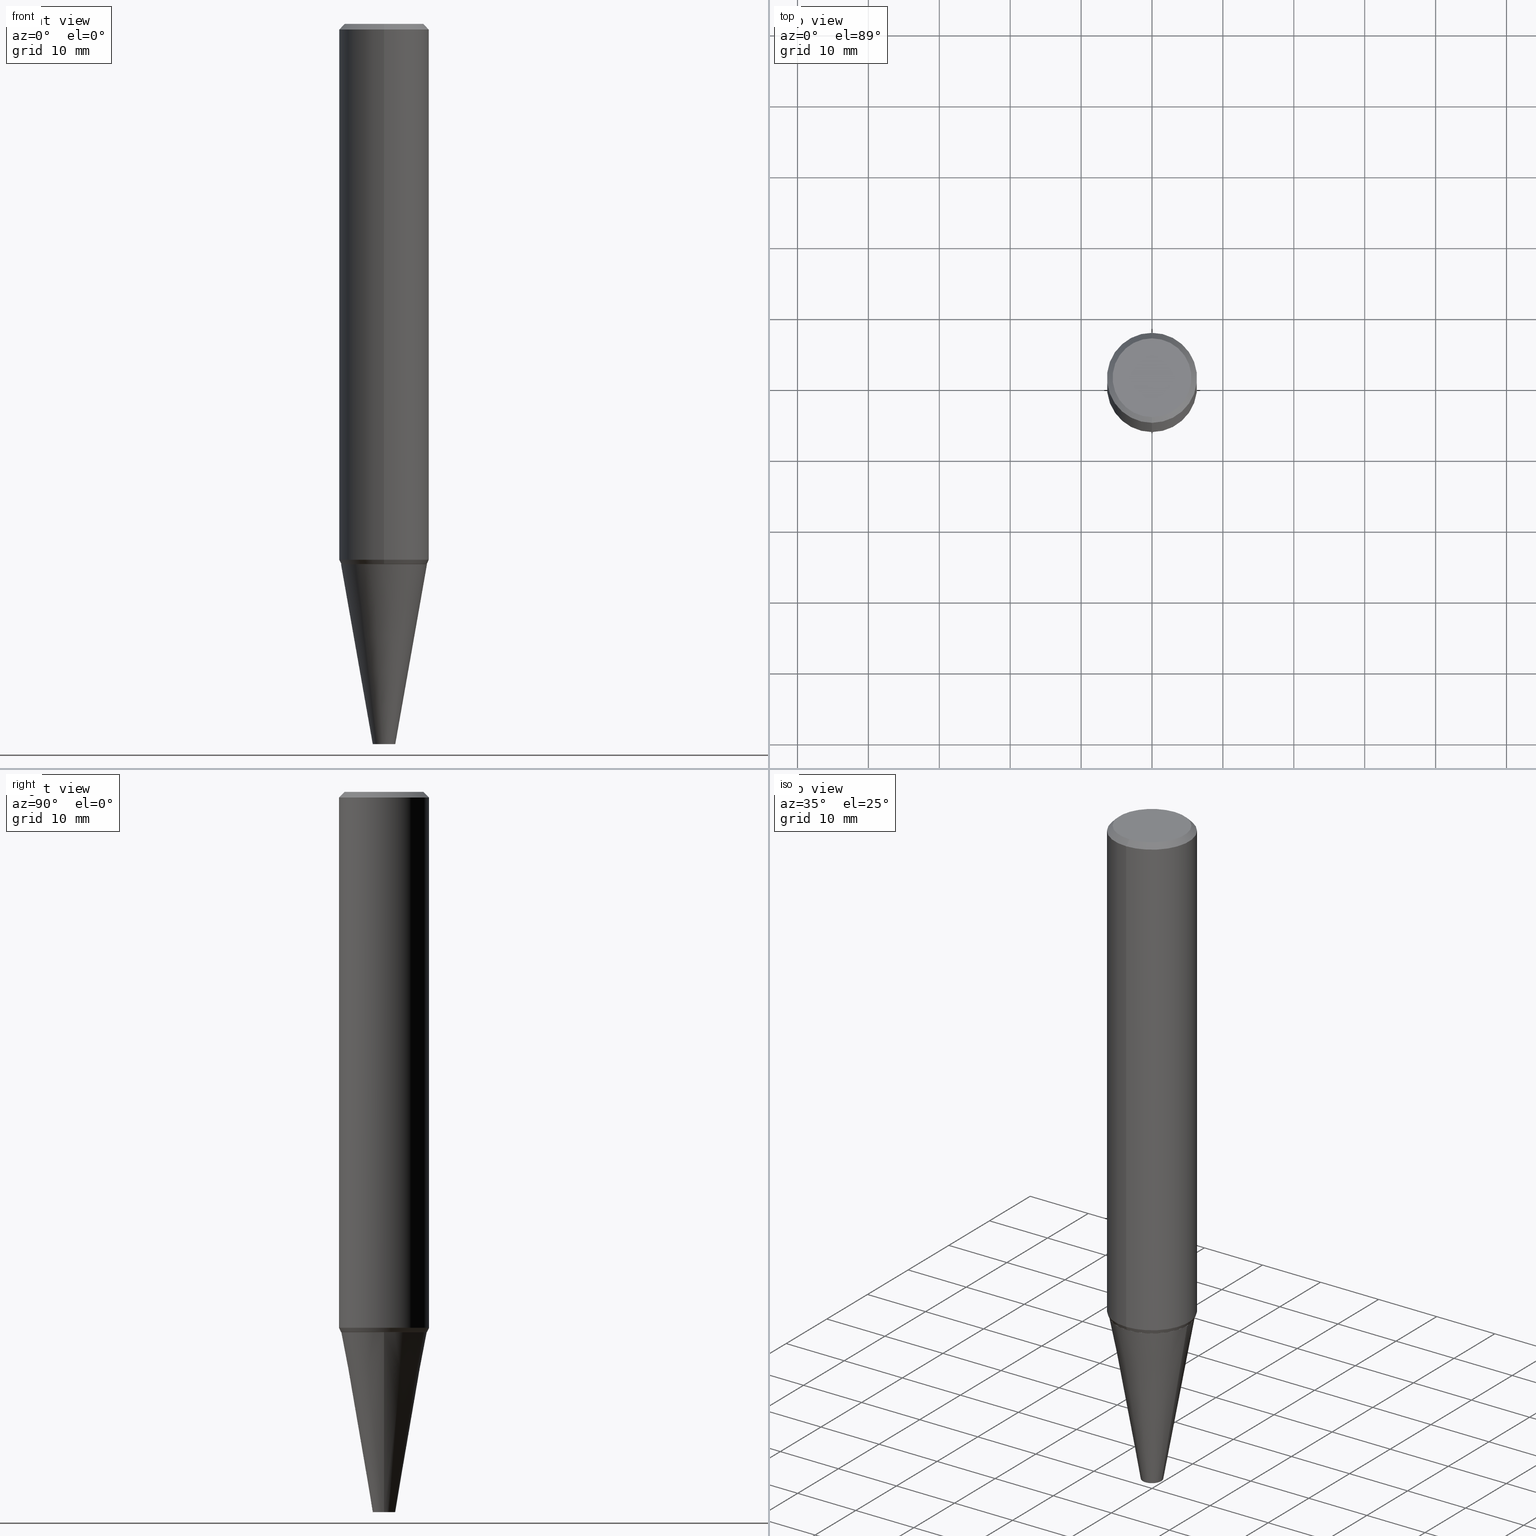
[diagram: canonical four-view strip — front | top / right | iso, engineering-drawing reading convention]
A machine part, canonical four-view strip (front | top / right | iso — engineering-drawing reading convention). The complete STEP part file that produces these views, byte-faithful:
ISO-10303-21;
HEADER;
FILE_DESCRIPTION (( 'STEP AP203' ),
    '1' );
FILE_NAME ('32389.STEP',
    '2024-03-04T15:10:15',
    ( '' ),
    ( '' ),
    'SwSTEP 2.0',
    'SolidWorks 2023',
    '' );
FILE_SCHEMA (( 'CONFIG_CONTROL_DESIGN' ));
ENDSEC;

DATA;
#1 = FACE_OUTER_BOUND ( 'NONE', #268, .T. ) ;
#2 = DIRECTION ( 'NONE',  ( -6.982962677686265922E-15, -1.000000000000000000, 2.283544290490416329E-15 ) ) ;
#3 = APPROVAL_DATE_TIME ( #105, #176 ) ;
#4 = ORIENTED_EDGE ( 'NONE', *, *, #210, .F. ) ;
#5 = COORDINATED_UNIVERSAL_TIME_OFFSET ( 5, 0, .BEHIND. ) ;
#6 = ORIENTED_EDGE ( 'NONE', *, *, #405, .T. ) ;
#7 = ADVANCED_FACE ( 'NONE', ( #79 ), #21, .F. ) ;
#8 = VECTOR ( 'NONE', #373, 39.37007874015748143 ) ;
#9 = AXIS2_PLACEMENT_3D ( 'NONE', #349, #155, #195 ) ;
#10 = DATE_TIME_ROLE ( 'creation_date' ) ;
#11 = EDGE_LOOP ( 'NONE', ( #235, #140, #271, #340 ) ) ;
#12 = ADVANCED_FACE ( 'NONE', ( #52 ), #301, .T. ) ;
#13 = DATE_AND_TIME ( #44, #415 ) ;
#14 = LINE ( 'NONE', #174, #28 ) ;
#15 = ADVANCED_FACE ( 'NONE', ( #269 ), #43, .T. ) ;
#16 = PERSON_AND_ORGANIZATION_ROLE ( 'classification_officer' ) ;
#17 = DIRECTION ( 'NONE',  ( -2.575671795613833682E-29, 3.305023247287315229E-15, 1.000000000000000000 ) ) ;
#18 = DESIGN_CONTEXT ( 'detailed design', #175, 'design' ) ;
#19 = AXIS2_PLACEMENT_3D ( 'NONE', #247, #160, #2 ) ;
#20 = CONICAL_SURFACE ( 'NONE', #239, 0.2383269807084578140, 0.7853981633977763499 ) ;
#21 = PLANE ( 'NONE',  #120 ) ;
#22 = DIRECTION ( 'NONE',  ( -2.575671795613833682E-29, 3.305023247287315229E-15, 1.000000000000000000 ) ) ;
#23 = EDGE_LOOP ( 'NONE', ( #414, #6 ) ) ;
#24 = DIRECTION ( 'NONE',  ( -2.575671795613833682E-29, 3.305023247287315229E-15, 1.000000000000000000 ) ) ;
#25 = AXIS2_PLACEMENT_3D ( 'NONE', #416, #208, #215 ) ;
#26 = LOCAL_TIME ( 10, 10, 15.00000000000000000, #261 ) ;
#27 = ADVANCED_FACE ( 'NONE', ( #305 ), #206, .T. ) ;
#28 = VECTOR ( 'NONE', #142, 39.37007874015748143 ) ;
#29 = DIRECTION ( 'NONE',  ( -6.982962677686265133E-15, -1.000000000000000000, 3.305023247287315229E-15 ) ) ;
#30 = CARTESIAN_POINT ( 'NONE',  ( 1.700071905924939890E-15, 0.2392638500633107457, -2.999063130645137409 ) ) ;
#31 = DIRECTION ( 'NONE',  ( -6.982962677686265133E-15, -1.000000000000000000, 3.312365692317912570E-15 ) ) ;
#32 = LINE ( 'NONE', #245, #238 ) ;
#33 = DIRECTION ( 'NONE',  ( -1.000000000000000000, 6.982962677686265922E-15, -4.876176775795935793E-29 ) ) ;
#34 = ORIENTED_EDGE ( 'NONE', *, *, #230, .F. ) ;
#35 = FACE_OUTER_BOUND ( 'NONE', #262, .T. ) ;
#36 = DIRECTION ( 'NONE',  ( -6.982962677686265922E-15, -1.000000000000000000, 2.292520960525318107E-15 ) ) ;
#37 = VECTOR ( 'NONE', #147, 39.37007874015748143 ) ;
#38 = FACE_OUTER_BOUND ( 'NONE', #284, .T. ) ;
#39 = LENGTH_MEASURE_WITH_UNIT ( LENGTH_MEASURE( 0.02539999999999999897 ), #153 );
#40 = ADVANCED_FACE ( 'NONE', ( #47 ), #171, .F. ) ;
#41 = ORIENTED_EDGE ( 'NONE', *, *, #258, .T. ) ;
#42 = ORIENTED_EDGE ( 'NONE', *, *, #400, .T. ) ;
#43 = CONICAL_SURFACE ( 'NONE', #152, 0.2392638500633214038, 0.4363323129985502424 ) ;
#44 = CALENDAR_DATE ( 2024, 4, 3 ) ;
#45 = DIRECTION ( 'NONE',  ( -6.982962677686265922E-15, -1.000000000000000000, 2.292520960525318107E-15 ) ) ;
#46 = PERSON_AND_ORGANIZATION_ROLE ( 'design_supplier' ) ;
#47 = FACE_OUTER_BOUND ( 'NONE', #260, .T. ) ;
#48 = APPLICATION_PROTOCOL_DEFINITION ( 'international standard', 'config_control_design', 1994, #81 ) ;
#49 = VERTEX_POINT ( 'NONE', #369 ) ;
#50 = VECTOR ( 'NONE', #190, 39.37007874015748143 ) ;
#51 = ORIENTED_EDGE ( 'NONE', *, *, #264, .T. ) ;
#52 = FACE_OUTER_BOUND ( 'NONE', #299, .T. ) ;
#53 = APPROVAL ( #398, 'UNSPECIFIED' ) ;
#54 = DIRECTION ( 'NONE',  ( -2.575671795613833682E-29, 3.305023247287315229E-15, 1.000000000000000000 ) ) ;
#55 = VECTOR ( 'NONE', #127, 39.37007874015748143 ) ;
#56 = AXIS2_PLACEMENT_3D ( 'NONE', #158, #283, #36 ) ;
#57 = EDGE_CURVE ( 'NONE', #199, #327, #14, .T. ) ;
#58 = DIRECTION ( 'NONE',  ( -2.445468806185136597E-29, 3.491481338843145583E-15, 1.000000000000000000 ) ) ;
#59 = DIRECTION ( 'NONE',  ( -2.575671795613833682E-29, 3.305023247287315229E-15, 1.000000000000000000 ) ) ;
#60 = CARTESIAN_POINT ( 'NONE',  ( -1.664228411372741941E-15, -0.2383269807084682224, -2.999999999999999112 ) ) ;
#61 = CIRCLE ( 'NONE', #347, 0.2500000000000004996 ) ;
#62 = DIRECTION ( 'NONE',  ( -2.575671795613833682E-29, 3.305023247287315229E-15, 1.000000000000000000 ) ) ;
#63 = CARTESIAN_POINT ( 'NONE',  ( -2.593084992338081866E-30, -5.898924003491758380E-16, -0.03125000000000010408 ) ) ;
#64 = DIRECTION ( 'NONE',  ( 2.438088387897960049E-29, -3.491481338843145188E-15, -1.000000000000000000 ) ) ;
#65 = CARTESIAN_POINT ( 'NONE',  ( -0.2388269807084578700, -8.777476254070312315E-15, -2.999999999999999556 ) ) ;
#66 = FACE_OUTER_BOUND ( 'NONE', #318, .T. ) ;
#67 = EDGE_CURVE ( 'NONE', #130, #293, #363, .T. ) ;
#68 = AXIS2_PLACEMENT_3D ( 'NONE', #124, #99, #133 ) ;
#69 = ORGANIZATION ( 'UNSPECIFIED', 'UNSPECIFIED', '' ) ;
#70 = EDGE_CURVE ( 'NONE', #148, #362, #80, .T. ) ;
#71 = ORIENTED_EDGE ( 'NONE', *, *, #274, .F. ) ;
#72 = ORIENTED_EDGE ( 'NONE', *, *, #57, .F. ) ;
#73 =( NAMED_UNIT ( * ) SI_UNIT ( $, .STERADIAN. ) SOLID_ANGLE_UNIT ( ) );
#74 = DIRECTION ( 'NONE',  ( 2.575671795613833682E-29, -3.305023247287315229E-15, -1.000000000000000000 ) ) ;
#75 =( GEOMETRIC_REPRESENTATION_CONTEXT ( 3 ) GLOBAL_UNCERTAINTY_ASSIGNED_CONTEXT ( ( #78 ) ) GLOBAL_UNIT_ASSIGNED_CONTEXT ( ( #279, #377, #73 ) ) REPRESENTATION_CONTEXT ( 'NONE', 'WORKASPACE' ) );
#76 = APPROVAL_ROLE ( '' ) ;
#77 = CARTESIAN_POINT ( 'NONE',  ( 7.384804076021264985E-29, -1.039858379073589950E-14, -2.999063130645136521 ) ) ;
#78 = UNCERTAINTY_MEASURE_WITH_UNIT (LENGTH_MEASURE( 1.000000000000000082E-05 ), #279, 'distance_accuracy_value', 'NONE');
#79 = FACE_OUTER_BOUND ( 'NONE', #266, .T. ) ;
#80 = LINE ( 'NONE', #303, #37 ) ;
#81 = APPLICATION_CONTEXT ( 'configuration controlled 3d designs of mechanical parts and assemblies' ) ;
#82 = EDGE_CURVE ( 'NONE', #399, #257, #126, .T. ) ;
#83 = AXIS2_PLACEMENT_3D ( 'NONE', #355, #314, #214 ) ;
#84 = ORIENTED_EDGE ( 'NONE', *, *, #258, .F. ) ;
#85 = CARTESIAN_POINT ( 'NONE',  ( 7.325502458083445516E-29, -1.032248976888885970E-14, -2.976039382806299205 ) ) ;
#86 = EDGE_CURVE ( 'NONE', #197, #257, #200, .T. ) ;
#87 = EDGE_CURVE ( 'NONE', #197, #362, #385, .T. ) ;
#88 = DIMENSIONAL_EXPONENTS ( 1.000000000000000000, 0.000000000000000000, 0.000000000000000000, 0.000000000000000000, 0.000000000000000000, 0.000000000000000000, 0.000000000000000000 ) ;
#89 = AXIS2_PLACEMENT_3D ( 'NONE', #381, #219, #316 ) ;
#90 = CARTESIAN_POINT ( 'NONE',  ( 1.745740669421567269E-15, 0.2499999999999998890, -0.03125000000000092981 ) ) ;
#91 = CARTESIAN_POINT ( 'NONE',  ( 7.384804076021264985E-29, -1.039858379073589950E-14, -2.999063130645136521 ) ) ;
#92 = DIRECTION ( 'NONE',  ( -2.445468806185136597E-29, 3.491481338843145583E-15, 1.000000000000000000 ) ) ;
#93 = LINE ( 'NONE', #319, #50 ) ;
#94 = AXIS2_PLACEMENT_3D ( 'NONE', #386, #220, #33 ) ;
#95 = LINE ( 'NONE', #288, #209 ) ;
#96 = DIRECTION ( 'NONE',  ( -6.982962677686265922E-15, -1.000000000000000000, 2.283544290490416329E-15 ) ) ;
#97 = ORIENTED_EDGE ( 'NONE', *, *, #70, .T. ) ;
#98 = CARTESIAN_POINT ( 'NONE',  ( 1.776356839400285963E-15, 0.2499999999999896194, -2.976039382806300537 ) ) ;
#99 = DIRECTION ( 'NONE',  ( -2.575671795613833682E-29, 3.305023247287315229E-15, 1.000000000000000000 ) ) ;
#100 = CALENDAR_DATE ( 2024, 4, 3 ) ;
#101 = EDGE_LOOP ( 'NONE', ( #207, #41, #189, #196 ) ) ;
#102 = CC_DESIGN_APPROVAL ( #176, ( #149 ) ) ;
#103 = SHAPE_DEFINITION_REPRESENTATION ( #351, #113 ) ;
#104 = VERTEX_POINT ( 'NONE', #275 ) ;
#105 = DATE_AND_TIME ( #365, #26 ) ;
#106 = ORIENTED_EDGE ( 'NONE', *, *, #86, .T. ) ;
#107 = DATE_AND_TIME ( #170, #169 ) ;
#108 = EDGE_LOOP ( 'NONE', ( #387, #106, #51, #403 ) ) ;
#109 = AXIS2_PLACEMENT_3D ( 'NONE', #379, #64, #187 ) ;
#110 = SECURITY_CLASSIFICATION ( '', '', #393 ) ;
#111 = APPROVAL_DATE_TIME ( #13, #53 ) ;
#112 = ORIENTED_EDGE ( 'NONE', *, *, #70, .F. ) ;
#113 = ADVANCED_BREP_SHAPE_REPRESENTATION ( '32389', ( #376, #374, #211 ), #75 ) ;
#114 = ORIENTED_EDGE ( 'NONE', *, *, #306, .T. ) ;
#115 = EDGE_CURVE ( 'NONE', #237, #197, #93, .T. ) ;
#116 = ORIENTED_EDGE ( 'NONE', *, *, #82, .F. ) ;
#117 = CONICAL_SURFACE ( 'NONE', #19, 0.2392638500633214038, 0.4363323129985502424 ) ;
#118 = AXIS2_PLACEMENT_3D ( 'NONE', #281, #311, #29 ) ;
#119 = ORIENTED_EDGE ( 'NONE', *, *, #201, .T. ) ;
#120 = AXIS2_PLACEMENT_3D ( 'NONE', #334, #232, #366 ) ;
#121 = AXIS2_PLACEMENT_3D ( 'NONE', #218, #58, #246 ) ;
#122 = FACE_OUTER_BOUND ( 'NONE', #359, .T. ) ;
#123 = CARTESIAN_POINT ( 'NONE',  ( -2.593084992338081866E-30, -5.898924003491758380E-16, -0.03125000000000010408 ) ) ;
#124 = CARTESIAN_POINT ( 'NONE',  ( -3.397982428467411198E-30, -4.866104238714463743E-16, 1.470268420365818581E-16 ) ) ;
#125 = CC_DESIGN_PERSON_AND_ORGANIZATION_ASSIGNMENT ( #324, #292, ( #323 ) ) ;
#126 = LINE ( 'NONE', #131, #357 ) ;
#127 = DIRECTION ( 'NONE',  ( -4.937700262166168362E-15, -0.7071067811867771669, 0.7071067811863178676 ) ) ;
#128 = DIRECTION ( 'NONE',  ( 5.024295867789709531E-15, 0.7071067811867818298, 0.7071067811863132047 ) ) ;
#129 = ADVANCED_FACE ( 'NONE', ( #35 ), #117, .T. ) ;
#130 = VERTEX_POINT ( 'NONE', #341 ) ;
#131 = CARTESIAN_POINT ( 'NONE',  ( -1.670770535111622273E-15, -0.2392638500633318122, -2.999063130645136077 ) ) ;
#132 = EDGE_CURVE ( 'NONE', #148, #178, #185, .T. ) ;
#133 = DIRECTION ( 'NONE',  ( -6.982962677686265133E-15, -1.000000000000000000, 3.305023247287315229E-15 ) ) ;
#134 = ORIENTED_EDGE ( 'NONE', *, *, #132, .T. ) ;
#135 = COORDINATED_UNIVERSAL_TIME_OFFSET ( 5, 0, .BEHIND. ) ;
#136 = ORIENTED_EDGE ( 'NONE', *, *, #151, .T. ) ;
#137 = DIRECTION ( 'NONE',  ( 0.000000000000000000, 0.000000000000000000, 1.000000000000000000 ) ) ;
#138 = PERSON_AND_ORGANIZATION ( #182, #69 ) ;
#139 = PERSON_AND_ORGANIZATION ( #182, #69 ) ;
#140 = ORIENTED_EDGE ( 'NONE', *, *, #146, .T. ) ;
#141 = PERSON_AND_ORGANIZATION ( #182, #69 ) ;
#142 = DIRECTION ( 'NONE',  ( -0.1736481776669235033, 4.672282404182295802E-15, 0.9848077530122092416 ) ) ;
#143 = ADVANCED_FACE ( 'NONE', ( #38 ), #312, .T. ) ;
#144 = CIRCLE ( 'NONE', #25, 0.2388269807084578700 ) ;
#145 = ORIENTED_EDGE ( 'NONE', *, *, #230, .T. ) ;
#146 = EDGE_CURVE ( 'NONE', #237, #399, #406, .T. ) ;
#147 = DIRECTION ( 'NONE',  ( 4.937700262164542520E-15, 0.7071067811865443531, -0.7071067811865506814 ) ) ;
#148 = VERTEX_POINT ( 'NONE', #184 ) ;
#149 = PRODUCT_DEFINITION_FORMATION_WITH_SPECIFIED_SOURCE ( 'ANY', '', #413, .NOT_KNOWN. ) ;
#150 = DIRECTION ( 'NONE',  ( -6.982962677686265922E-15, -1.000000000000000000, 4.370956789862822727E-15 ) ) ;
#151 = EDGE_CURVE ( 'NONE', #49, #362, #233, .T. ) ;
#152 = AXIS2_PLACEMENT_3D ( 'NONE', #77, #202, #331 ) ;
#153 =( LENGTH_UNIT ( ) NAMED_UNIT ( * ) SI_UNIT ( $, .METRE. ) );
#154 = FACE_OUTER_BOUND ( 'NONE', #108, .T. ) ;
#155 = DIRECTION ( 'NONE',  ( 2.575671795613833682E-29, -3.305023247287315229E-15, -1.000000000000000000 ) ) ;
#156 = CARTESIAN_POINT ( 'NONE',  ( -1.745740669421492722E-15, -0.2500000000000102141, -2.976039382806298317 ) ) ;
#157 = ADVANCED_FACE ( 'NONE', ( #66 ), #213, .T. ) ;
#158 = CARTESIAN_POINT ( 'NONE',  ( 7.387217143994760136E-29, -1.040168016573339117E-14, -2.999999999999999556 ) ) ;
#159 = ORIENTED_EDGE ( 'NONE', *, *, #151, .F. ) ;
#160 = DIRECTION ( 'NONE',  ( -2.575671795613833682E-29, 3.305023247287315229E-15, 1.000000000000000000 ) ) ;
#161 = CIRCLE ( 'NONE', #342, 0.2499999999999999167 ) ;
#162 = ORIENTED_EDGE ( 'NONE', *, *, #57, .T. ) ;
#163 = CARTESIAN_POINT ( 'NONE',  ( -1.607929218227708232E-15, -0.2187500000000007772, 8.700006773806830258E-16 ) ) ;
#164 = DIRECTION ( 'NONE',  ( -2.575671795613833682E-29, 3.305023247287315229E-15, 1.000000000000000000 ) ) ;
#165 = ORIENTED_EDGE ( 'NONE', *, *, #87, .T. ) ;
#166 = APPROVAL_ROLE ( '' ) ;
#167 = EDGE_LOOP ( 'NONE', ( #114, #162, #402, #34 ) ) ;
#168 = ORIENTED_EDGE ( 'NONE', *, *, #67, .F. ) ;
#169 = LOCAL_TIME ( 10, 10, 15.00000000000000000, #295 ) ;
#170 = CALENDAR_DATE ( 2024, 4, 3 ) ;
#171 = PLANE ( 'NONE',  #272 ) ;
#172 = EDGE_CURVE ( 'NONE', #104, #327, #144, .T. ) ;
#173 = APPROVAL_STATUS ( 'not_yet_approved' ) ;
#174 = CARTESIAN_POINT ( 'NONE',  ( -0.06250000000000000000, -1.352183614552251971E-14, -4.000000000000000000 ) ) ;
#175 = APPLICATION_CONTEXT ( 'configuration controlled 3d designs of mechanical parts and assemblies' ) ;
#176 = APPROVAL ( #173, 'UNSPECIFIED' ) ;
#177 = DIRECTION ( 'NONE',  ( -6.982962677686265922E-15, -1.000000000000000000, 3.305023247287315229E-15 ) ) ;
#178 = VERTEX_POINT ( 'NONE', #163 ) ;
#179 = CARTESIAN_POINT ( 'NONE',  ( -2.593084992338081866E-30, -5.898924003491758380E-16, -0.03125000000000010408 ) ) ;
#180 = DIRECTION ( 'NONE',  ( -6.982962677686265922E-15, -1.000000000000000000, 4.370956789862822727E-15 ) ) ;
#181 = AXIS2_PLACEMENT_3D ( 'NONE', #388, #54, #180 ) ;
#182 = PERSON ( 'UNSPECIFIED', 'UNSPECIFIED', 'UNSPECIFIED', ('UNSPECIFIED'), ('UNSPECIFIED'), ('UNSPECIFIED') ) ;
#183 = PLANE ( 'NONE',  #94 ) ;
#184 = CARTESIAN_POINT ( 'NONE',  ( 1.636631877582718366E-15, 0.2187499999999998057, -5.759469933075193097E-16 ) ) ;
#185 = CIRCLE ( 'NONE', #89, 0.2187500000000003053 ) ;
#186 = DIRECTION ( 'NONE',  ( -6.982962677686265922E-15, -1.000000000000000000, 2.292520960525318107E-15 ) ) ;
#187 = DIRECTION ( 'NONE',  ( -1.000000000000000000, 6.982962677686265922E-15, -4.876176775795935793E-29 ) ) ;
#188 = DIRECTION ( 'NONE',  ( -2.445468806185136597E-29, 3.491481338843145583E-15, 1.000000000000000000 ) ) ;
#189 = ORIENTED_EDGE ( 'NONE', *, *, #287, .F. ) ;
#190 = DIRECTION ( 'NONE',  ( 3.002883358793915869E-15, 0.4226182617406732955, 0.9063077870366622601 ) ) ;
#191 = CARTESIAN_POINT ( 'NONE',  ( 7.387217143994760136E-29, -1.040168016573339117E-14, -2.999999999999999556 ) ) ;
#192 = ORIENTED_EDGE ( 'NONE', *, *, #367, .F. ) ;
#193 = DIRECTION ( 'NONE',  ( -6.982962677686265922E-15, -1.000000000000000000, 2.283544290490416329E-15 ) ) ;
#194 = CIRCLE ( 'NONE', #56, 0.2383269807084578140 ) ;
#195 = DIRECTION ( 'NONE',  ( 6.982962677686265133E-15, 1.000000000000000000, -3.312365692317912570E-15 ) ) ;
#196 = ORIENTED_EDGE ( 'NONE', *, *, #270, .F. ) ;
#197 = VERTEX_POINT ( 'NONE', #98 ) ;
#198 = CARTESIAN_POINT ( 'NONE',  ( 0.000000000000000000, 0.000000000000000000, 0.000000000000000000 ) ) ;
#199 = VERTEX_POINT ( 'NONE', #307 ) ;
#200 = CIRCLE ( 'NONE', #181, 0.2499999999999999167 ) ;
#201 = EDGE_CURVE ( 'NONE', #178, #49, #222, .T. ) ;
#202 = DIRECTION ( 'NONE',  ( -2.575671795613833682E-29, 3.305023247287315229E-15, 1.000000000000000000 ) ) ;
#203 = PERSON_AND_ORGANIZATION_ROLE ( 'design_owner' ) ;
#204 = CARTESIAN_POINT ( 'NONE',  ( 7.387217143994760136E-29, -1.040168016573339117E-14, -2.999999999999999556 ) ) ;
#205 = ORIENTED_EDGE ( 'NONE', *, *, #210, .T. ) ;
#206 = CONICAL_SURFACE ( 'NONE', #383, 0.2383269807084578140, 0.7853981633977763499 ) ;
#207 = ORIENTED_EDGE ( 'NONE', *, *, #67, .T. ) ;
#208 = DIRECTION ( 'NONE',  ( -2.445468806185136597E-29, 3.491481338843145583E-15, 1.000000000000000000 ) ) ;
#209 = VECTOR ( 'NONE', #164, 39.37007874015748143 ) ;
#210 = EDGE_CURVE ( 'NONE', #257, #197, #161, .T. ) ;
#211 = AXIS2_PLACEMENT_3D ( 'NONE', #198, #137, #394 ) ;
#212 = DIRECTION ( 'NONE',  ( -2.575671795613833682E-29, 3.305023247287315229E-15, 1.000000000000000000 ) ) ;
#213 = PLANE ( 'NONE',  #109 ) ;
#214 = DIRECTION ( 'NONE',  ( 1.000000000000000000, -6.982962677686262766E-15, 0.000000000000000000 ) ) ;
#215 = DIRECTION ( 'NONE',  ( 1.000000000000000000, -6.982962677686269866E-15, 0.000000000000000000 ) ) ;
#216 = CLOSED_SHELL ( 'NONE', ( #370, #157, #143, #304 ) ) ;
#217 = CIRCLE ( 'NONE', #244, 0.2392638500633214038 ) ;
#218 = CARTESIAN_POINT ( 'NONE',  ( 9.781875224740546387E-29, -1.396592535537258233E-14, -4.000000000000000000 ) ) ;
#219 = DIRECTION ( 'NONE',  ( -2.575671795613833682E-29, 3.305023247287315229E-15, 1.000000000000000000 ) ) ;
#220 = DIRECTION ( 'NONE',  ( 2.438088387897960049E-29, -3.491481338843145188E-15, -1.000000000000000000 ) ) ;
#221 = ORIENTED_EDGE ( 'NONE', *, *, #400, .F. ) ;
#222 = LINE ( 'NONE', #289, #8 ) ;
#223 = FACE_OUTER_BOUND ( 'NONE', #291, .T. ) ;
#224 = AXIS2_PLACEMENT_3D ( 'NONE', #123, #352, #354 ) ;
#225 = CONICAL_SURFACE ( 'NONE', #9, 0.2500000000000004996, 0.7853981633974471688 ) ;
#226 = ORIENTED_EDGE ( 'NONE', *, *, #132, .F. ) ;
#227 = MECHANICAL_CONTEXT ( 'NONE', #81, 'mechanical' ) ;
#228 = ORIENTED_EDGE ( 'NONE', *, *, #350, .T. ) ;
#229 = PERSON_AND_ORGANIZATION ( #182, #69 ) ;
#230 = EDGE_CURVE ( 'NONE', #263, #104, #32, .T. ) ;
#231 = PERSON_AND_ORGANIZATION ( #182, #69 ) ;
#232 = DIRECTION ( 'NONE',  ( 2.575671795613833682E-29, -3.305023247287315229E-15, -1.000000000000000000 ) ) ;
#233 = CIRCLE ( 'NONE', #224, 0.2500000000000004996 ) ;
#234 = DATE_AND_TIME ( #297, #329 ) ;
#235 = ORIENTED_EDGE ( 'NONE', *, *, #115, .F. ) ;
#236 = DIRECTION ( 'NONE',  ( 6.982962677686265133E-15, 1.000000000000000000, -3.312365692317912570E-15 ) ) ;
#237 = VERTEX_POINT ( 'NONE', #30 ) ;
#238 = VECTOR ( 'NONE', #345, 39.37007874015748143 ) ;
#239 = AXIS2_PLACEMENT_3D ( 'NONE', #191, #344, #186 ) ;
#240 = APPROVAL ( #333, 'UNSPECIFIED' ) ;
#241 = DIRECTION ( 'NONE',  ( 1.000000000000000000, -6.982962677686262766E-15, 0.000000000000000000 ) ) ;
#242 = ADVANCED_FACE ( 'NONE', ( #154 ), #280, .T. ) ;
#243 = CC_DESIGN_DATE_AND_TIME_ASSIGNMENT ( #234, #10, ( #323 ) ) ;
#244 = AXIS2_PLACEMENT_3D ( 'NONE', #407, #212, #96 ) ;
#245 = CARTESIAN_POINT ( 'NONE',  ( 0.06250000000000000000, -1.440236052272797400E-14, -4.000000000000000000 ) ) ;
#246 = DIRECTION ( 'NONE',  ( 1.000000000000000000, -6.982962677686262766E-15, 0.000000000000000000 ) ) ;
#247 = CARTESIAN_POINT ( 'NONE',  ( 7.384804076021264985E-29, -1.039858379073589950E-14, -2.999063130645136521 ) ) ;
#248 = CARTESIAN_POINT ( 'NONE',  ( 1.696743477352668789E-15, 0.2383269807084474057, -3.000000000000000444 ) ) ;
#249 = CARTESIAN_POINT ( 'NONE',  ( 0.06250000000000000000, -1.440236052272797400E-14, -4.000000000000000000 ) ) ;
#250 = AXIS2_PLACEMENT_3D ( 'NONE', #204, #336, #300 ) ;
#251 = CC_DESIGN_APPROVAL ( #53, ( #110 ) ) ;
#252 = FACE_OUTER_BOUND ( 'NONE', #23, .T. ) ;
#253 = ORIENTED_EDGE ( 'NONE', *, *, #201, .F. ) ;
#254 = DIRECTION ( 'NONE',  ( -2.575671795613833682E-29, 3.305023247287315229E-15, 1.000000000000000000 ) ) ;
#255 = DIRECTION ( 'NONE',  ( 1.000000000000000000, -6.982962677686262766E-15, 0.000000000000000000 ) ) ;
#256 = ORIENTED_EDGE ( 'NONE', *, *, #146, .F. ) ;
#257 = VERTEX_POINT ( 'NONE', #156 ) ;
#258 = EDGE_CURVE ( 'NONE', #293, #237, #282, .T. ) ;
#259 = APPLICATION_PROTOCOL_DEFINITION ( 'international standard', 'config_control_design', 1994, #175 ) ;
#260 = EDGE_LOOP ( 'NONE', ( #168, #221 ) ) ;
#261 = COORDINATED_UNIVERSAL_TIME_OFFSET ( 5, 0, .BEHIND. ) ;
#262 = EDGE_LOOP ( 'NONE', ( #395, #325, #4, #116 ) ) ;
#263 = VERTEX_POINT ( 'NONE', #249 ) ;
#264 = EDGE_CURVE ( 'NONE', #257, #49, #95, .T. ) ;
#265 = DATE_AND_TIME ( #100, #310 ) ;
#266 = EDGE_LOOP ( 'NONE', ( #134, #401 ) ) ;
#267 = AXIS2_PLACEMENT_3D ( 'NONE', #382, #92, #410 ) ;
#268 = EDGE_LOOP ( 'NONE', ( #84, #42, #356, #256 ) ) ;
#269 = FACE_OUTER_BOUND ( 'NONE', #11, .T. ) ;
#270 = EDGE_CURVE ( 'NONE', #130, #399, #317, .T. ) ;
#271 = ORIENTED_EDGE ( 'NONE', *, *, #82, .T. ) ;
#272 = AXIS2_PLACEMENT_3D ( 'NONE', #298, #22, #177 ) ;
#273 = APPROVAL_PERSON_ORGANIZATION ( #390, #240, #360 ) ;
#274 = EDGE_CURVE ( 'NONE', #178, #148, #285, .T. ) ;
#275 = CARTESIAN_POINT ( 'NONE',  ( 0.2388269807084578700, -1.214216390924109467E-14, -2.999999999999999556 ) ) ;
#276 = ADVANCED_FACE ( 'NONE', ( #1 ), #20, .T. ) ;
#277 = AXIS2_PLACEMENT_3D ( 'NONE', #411, #62, #348 ) ;
#278 = APPROVAL_PERSON_ORGANIZATION ( #138, #176, #76 ) ;
#279 =( CONVERSION_BASED_UNIT ( 'INCH', #39 ) LENGTH_UNIT ( ) NAMED_UNIT ( #88 ) );
#280 = CYLINDRICAL_SURFACE ( 'NONE', #277, 0.2500000000000002220 ) ;
#281 = CARTESIAN_POINT ( 'NONE',  ( -3.397982428467408395E-30, -4.866104238714468673E-16, 1.912385453283800096E-17 ) ) ;
#282 = LINE ( 'NONE', #412, #309 ) ;
#283 = DIRECTION ( 'NONE',  ( -2.575671795613833682E-29, 3.305023247287315229E-15, 1.000000000000000000 ) ) ;
#284 = EDGE_LOOP ( 'NONE', ( #72, #391, #145, #372 ) ) ;
#285 = CIRCLE ( 'NONE', #68, 0.2187500000000003053 ) ;
#286 = CARTESIAN_POINT ( 'NONE',  ( 9.781875224740546387E-29, -1.396592535537258233E-14, -4.000000000000000000 ) ) ;
#287 = EDGE_CURVE ( 'NONE', #399, #237, #217, .T. ) ;
#288 = CARTESIAN_POINT ( 'NONE',  ( -1.745740669421571411E-15, -0.2500000000000006661, 8.453796663546674491E-16 ) ) ;
#289 = CARTESIAN_POINT ( 'NONE',  ( -1.715124499442888610E-15, -0.2500000000000010547, -0.03124999999999927489 ) ) ;
#290 = CC_DESIGN_PERSON_AND_ORGANIZATION_ASSIGNMENT ( #139, #46, ( #149 ) ) ;
#291 = EDGE_LOOP ( 'NONE', ( #205, #165, #159, #338 ) ) ;
#292 = PERSON_AND_ORGANIZATION_ROLE ( 'creator' ) ;
#293 = VERTEX_POINT ( 'NONE', #248 ) ;
#294 = AXIS2_PLACEMENT_3D ( 'NONE', #320, #188, #255 ) ;
#295 = COORDINATED_UNIVERSAL_TIME_OFFSET ( 5, 0, .BEHIND. ) ;
#296 = ORIENTED_EDGE ( 'NONE', *, *, #306, .F. ) ;
#297 = CALENDAR_DATE ( 2024, 4, 3 ) ;
#298 = CARTESIAN_POINT ( 'NONE',  ( 7.240952561478714089E-29, -1.061113937275941179E-14, -2.999999999999999556 ) ) ;
#299 = EDGE_LOOP ( 'NONE', ( #71, #119, #136, #112 ) ) ;
#300 = DIRECTION ( 'NONE',  ( -6.982962677686265922E-15, -1.000000000000000000, 2.292520960525318107E-15 ) ) ;
#301 = CONICAL_SURFACE ( 'NONE', #328, 0.2500000000000004996, 0.7853981633974471688 ) ;
#302 = CIRCLE ( 'NONE', #121, 0.06250000000000000000 ) ;
#303 = CARTESIAN_POINT ( 'NONE',  ( 1.745740669421567269E-15, 0.2499999999999998890, -0.03125000000000092981 ) ) ;
#304 = ADVANCED_FACE ( 'NONE', ( #252 ), #183, .F. ) ;
#305 = FACE_OUTER_BOUND ( 'NONE', #101, .T. ) ;
#306 = EDGE_CURVE ( 'NONE', #263, #199, #302, .T. ) ;
#307 = CARTESIAN_POINT ( 'NONE',  ( -0.06250000000000000000, -1.114965619979641601E-14, -4.000000000000000000 ) ) ;
#308 = VECTOR ( 'NONE', #59, 39.37007874015748143 ) ;
#309 = VECTOR ( 'NONE', #128, 39.37007874015748143 ) ;
#310 = LOCAL_TIME ( 10, 10, 15.00000000000000000, #135 ) ;
#311 = DIRECTION ( 'NONE',  ( -2.575671795613833682E-29, 3.305023247287315229E-15, 1.000000000000000000 ) ) ;
#312 = CONICAL_SURFACE ( 'NONE', #375, 0.06250000000000000000, 0.1745329251994260089 ) ;
#313 = DIRECTION ( 'NONE',  ( -2.445468806185136597E-29, 3.491481338843145583E-15, 1.000000000000000000 ) ) ;
#314 = DIRECTION ( 'NONE',  ( -2.445468806185136597E-29, 3.491481338843145583E-15, 1.000000000000000000 ) ) ;
#315 = PRODUCT_RELATED_PRODUCT_CATEGORY ( 'detail', '', ( #413 ) ) ;
#316 = DIRECTION ( 'NONE',  ( -6.982962677686265133E-15, -1.000000000000000000, 3.305023247287315229E-15 ) ) ;
#317 = LINE ( 'NONE', #60, #55 ) ;
#318 = EDGE_LOOP ( 'NONE', ( #296, #192 ) ) ;
#319 = CARTESIAN_POINT ( 'NONE',  ( 1.700071905924941665E-15, 0.2392638500633109677, -2.999063130645137409 ) ) ;
#320 = CARTESIAN_POINT ( 'NONE',  ( 9.781875224740546387E-29, -1.396592535537258233E-14, -4.000000000000000000 ) ) ;
#321 = AXIS2_PLACEMENT_3D ( 'NONE', #91, #254, #193 ) ;
#322 = CARTESIAN_POINT ( 'NONE',  ( 1.776356839400248295E-15, 0.2499999999999997224, -8.071319572889914472E-16 ) ) ;
#323 = PRODUCT_DEFINITION ( 'UNKNOWN', '', #149, #18 ) ;
#324 = PERSON_AND_ORGANIZATION ( #182, #69 ) ;
#325 = ORIENTED_EDGE ( 'NONE', *, *, #115, .T. ) ;
#326 = APPROVAL_DATE_TIME ( #107, #240 ) ;
#327 = VERTEX_POINT ( 'NONE', #65 ) ;
#328 = AXIS2_PLACEMENT_3D ( 'NONE', #179, #74, #236 ) ;
#329 = LOCAL_TIME ( 10, 10, 15.00000000000000000, #5 ) ;
#330 = PERSON_AND_ORGANIZATION ( #182, #69 ) ;
#331 = DIRECTION ( 'NONE',  ( -6.982962677686265922E-15, -1.000000000000000000, 2.283544290490416329E-15 ) ) ;
#332 = ADVANCED_FACE ( 'NONE', ( #122 ), #225, .T. ) ;
#333 = APPROVAL_STATUS ( 'not_yet_approved' ) ;
#334 = CARTESIAN_POINT ( 'NONE',  ( 1.527523085743869265E-15, 0.2187499999999998057, -6.398984870593912875E-16 ) ) ;
#335 = PERSON_AND_ORGANIZATION_ROLE ( 'creator' ) ;
#336 = DIRECTION ( 'NONE',  ( -2.575671795613833682E-29, 3.305023247287315229E-15, 1.000000000000000000 ) ) ;
#337 = CC_DESIGN_DATE_AND_TIME_ASSIGNMENT ( #265, #368, ( #110 ) ) ;
#338 = ORIENTED_EDGE ( 'NONE', *, *, #264, .F. ) ;
#339 = CC_DESIGN_SECURITY_CLASSIFICATION ( #110, ( #149 ) ) ;
#340 = ORIENTED_EDGE ( 'NONE', *, *, #86, .F. ) ;
#341 = CARTESIAN_POINT ( 'NONE',  ( -1.664228411372741941E-15, -0.2383269807084682224, -2.999999999999999112 ) ) ;
#342 = AXIS2_PLACEMENT_3D ( 'NONE', #85, #24, #150 ) ;
#343 = ADVANCED_FACE ( 'NONE', ( #223 ), #346, .T. ) ;
#344 = DIRECTION ( 'NONE',  ( -2.575671795613833682E-29, 3.305023247287315229E-15, 1.000000000000000000 ) ) ;
#345 = DIRECTION ( 'NONE',  ( 0.1736481776669235033, 2.225859148293817317E-15, 0.9848077530122092416 ) ) ;
#346 = CYLINDRICAL_SURFACE ( 'NONE', #118, 0.2500000000000002220 ) ;
#347 = AXIS2_PLACEMENT_3D ( 'NONE', #63, #353, #31 ) ;
#348 = DIRECTION ( 'NONE',  ( -6.982962677686265133E-15, -1.000000000000000000, 3.305023247287315229E-15 ) ) ;
#349 = CARTESIAN_POINT ( 'NONE',  ( -2.593084992338081866E-30, -5.898924003491758380E-16, -0.03125000000000010408 ) ) ;
#350 = EDGE_CURVE ( 'NONE', #362, #49, #61, .T. ) ;
#351 = PRODUCT_DEFINITION_SHAPE ( 'NONE', 'NONE',  #323 ) ;
#352 = DIRECTION ( 'NONE',  ( -2.575671795613833682E-29, 3.305023247287315229E-15, 1.000000000000000000 ) ) ;
#353 = DIRECTION ( 'NONE',  ( -2.575671795613833682E-29, 3.305023247287315229E-15, 1.000000000000000000 ) ) ;
#354 = DIRECTION ( 'NONE',  ( -6.982962677686265133E-15, -1.000000000000000000, 3.312365692317912570E-15 ) ) ;
#355 = CARTESIAN_POINT ( 'NONE',  ( 9.781875224740546387E-29, -1.396592535537258233E-14, -4.000000000000000000 ) ) ;
#356 = ORIENTED_EDGE ( 'NONE', *, *, #270, .T. ) ;
#357 = VECTOR ( 'NONE', #404, 39.37007874015748854 ) ;
#358 = CONICAL_SURFACE ( 'NONE', #83, 0.06250000000000000000, 0.1745329251994260089 ) ;
#359 = EDGE_LOOP ( 'NONE', ( #253, #226, #97, #228 ) ) ;
#360 = APPROVAL_ROLE ( '' ) ;
#361 = COORDINATED_UNIVERSAL_TIME_OFFSET ( 5, 0, .BEHIND. ) ;
#362 = VERTEX_POINT ( 'NONE', #90 ) ;
#363 = CIRCLE ( 'NONE', #250, 0.2383269807084578140 ) ;
#364 = APPROVAL_PERSON_ORGANIZATION ( #229, #53, #166 ) ;
#365 = CALENDAR_DATE ( 2024, 4, 3 ) ;
#366 = DIRECTION ( 'NONE',  ( 6.982962677686265922E-15, 1.000000000000000000, -3.305023247287315229E-15 ) ) ;
#367 = EDGE_CURVE ( 'NONE', #199, #263, #384, .T. ) ;
#368 = DATE_TIME_ROLE ( 'classification_date' ) ;
#369 = CARTESIAN_POINT ( 'NONE',  ( -1.715124499442888610E-15, -0.2500000000000010547, -0.03124999999999927489 ) ) ;
#370 = ADVANCED_FACE ( 'NONE', ( #389 ), #358, .T. ) ;
#371 = CARTESIAN_POINT ( 'NONE',  ( 7.387217143994760136E-29, -1.040168016573339117E-14, -2.999999999999999556 ) ) ;
#372 = ORIENTED_EDGE ( 'NONE', *, *, #405, .F. ) ;
#373 = DIRECTION ( 'NONE',  ( -4.851104656540957175E-15, -0.7071067811865490160, -0.7071067811865460184 ) ) ;
#374 = MANIFOLD_SOLID_BREP ( 'Body-Move/Copy2[2]', #396 ) ;
#375 = AXIS2_PLACEMENT_3D ( 'NONE', #286, #313, #241 ) ;
#376 = MANIFOLD_SOLID_BREP ( 'Body-Move/Copy2[1]', #216 ) ;
#377 =( NAMED_UNIT ( * ) PLANE_ANGLE_UNIT ( ) SI_UNIT ( $, .RADIAN. ) );
#378 = CC_DESIGN_PERSON_AND_ORGANIZATION_ASSIGNMENT ( #141, #203, ( #413 ) ) ;
#379 = CARTESIAN_POINT ( 'NONE',  ( 4.364351673554894389E-16, 0.06249999999998603201, -4.000000000000000000 ) ) ;
#380 = CARTESIAN_POINT ( 'NONE',  ( -1.670770535111623850E-15, -0.2392638500633320620, -2.999063130645136077 ) ) ;
#381 = CARTESIAN_POINT ( 'NONE',  ( -3.397982428467411198E-30, -4.866104238714463743E-16, 1.470268420365818581E-16 ) ) ;
#382 = CARTESIAN_POINT ( 'NONE',  ( 7.336406418555408669E-29, -1.047444401652943478E-14, -2.999999999999999556 ) ) ;
#383 = AXIS2_PLACEMENT_3D ( 'NONE', #371, #17, #45 ) ;
#384 = CIRCLE ( 'NONE', #294, 0.06250000000000000000 ) ;
#385 = LINE ( 'NONE', #322, #308 ) ;
#386 = CARTESIAN_POINT ( 'NONE',  ( 1.667719892711732466E-15, 0.2388269807084474061, -3.000000000000000888 ) ) ;
#387 = ORIENTED_EDGE ( 'NONE', *, *, #87, .F. ) ;
#388 = CARTESIAN_POINT ( 'NONE',  ( 7.325502458083445516E-29, -1.032248976888885970E-14, -2.976039382806299205 ) ) ;
#389 = FACE_OUTER_BOUND ( 'NONE', #167, .T. ) ;
#390 = PERSON_AND_ORGANIZATION ( #182, #69 ) ;
#391 = ORIENTED_EDGE ( 'NONE', *, *, #367, .T. ) ;
#392 = CC_DESIGN_PERSON_AND_ORGANIZATION_ASSIGNMENT ( #231, #335, ( #149 ) ) ;
#393 = SECURITY_CLASSIFICATION_LEVEL ( 'unclassified' ) ;
#394 = DIRECTION ( 'NONE',  ( 1.000000000000000000, 0.000000000000000000, 0.000000000000000000 ) ) ;
#395 = ORIENTED_EDGE ( 'NONE', *, *, #287, .T. ) ;
#396 = CLOSED_SHELL ( 'NONE', ( #129, #343, #12, #27, #276, #40, #7, #332, #242, #15 ) ) ;
#397 = CIRCLE ( 'NONE', #267, 0.2388269807084578700 ) ;
#398 = APPROVAL_STATUS ( 'not_yet_approved' ) ;
#399 = VERTEX_POINT ( 'NONE', #380 ) ;
#400 = EDGE_CURVE ( 'NONE', #293, #130, #194, .T. ) ;
#401 = ORIENTED_EDGE ( 'NONE', *, *, #274, .T. ) ;
#402 = ORIENTED_EDGE ( 'NONE', *, *, #172, .F. ) ;
#403 = ORIENTED_EDGE ( 'NONE', *, *, #350, .F. ) ;
#404 = DIRECTION ( 'NONE',  ( -2.951127548643768974E-15, -0.4226182617406672448, 0.9063077870366649247 ) ) ;
#405 = EDGE_CURVE ( 'NONE', #327, #104, #397, .T. ) ;
#406 = CIRCLE ( 'NONE', #321, 0.2392638500633214038 ) ;
#407 = CARTESIAN_POINT ( 'NONE',  ( 7.384804076021264985E-29, -1.039858379073589950E-14, -2.999063130645136521 ) ) ;
#408 = CC_DESIGN_PERSON_AND_ORGANIZATION_ASSIGNMENT ( #330, #16, ( #110 ) ) ;
#409 = CC_DESIGN_APPROVAL ( #240, ( #323 ) ) ;
#410 = DIRECTION ( 'NONE',  ( 1.000000000000000000, -6.982962677686269866E-15, 0.000000000000000000 ) ) ;
#411 = CARTESIAN_POINT ( 'NONE',  ( -3.397982428467408395E-30, -4.866104238714468673E-16, 1.912385453283800096E-17 ) ) ;
#412 = CARTESIAN_POINT ( 'NONE',  ( 1.693415048780395913E-15, 0.2383269807084474057, -3.000000000000000444 ) ) ;
#413 = PRODUCT ( '32389', '32389', '', ( #227 ) ) ;
#414 = ORIENTED_EDGE ( 'NONE', *, *, #172, .T. ) ;
#415 = LOCAL_TIME ( 10, 10, 15.00000000000000000, #361 ) ;
#416 = CARTESIAN_POINT ( 'NONE',  ( 7.336406418555408669E-29, -1.047444401652943478E-14, -2.999999999999999556 ) ) ;
ENDSEC;
END-ISO-10303-21;
